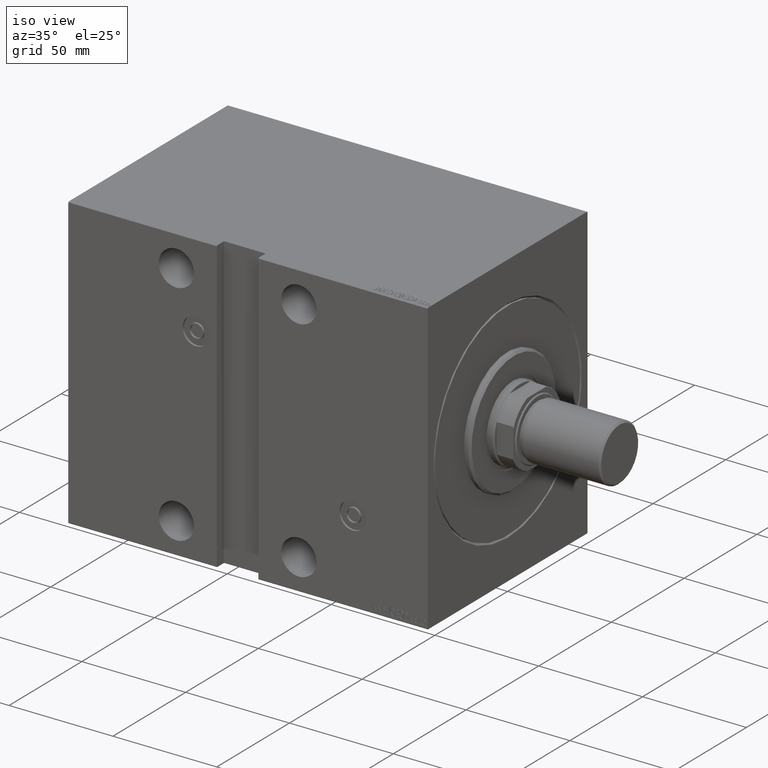
[diagram: clean part render]
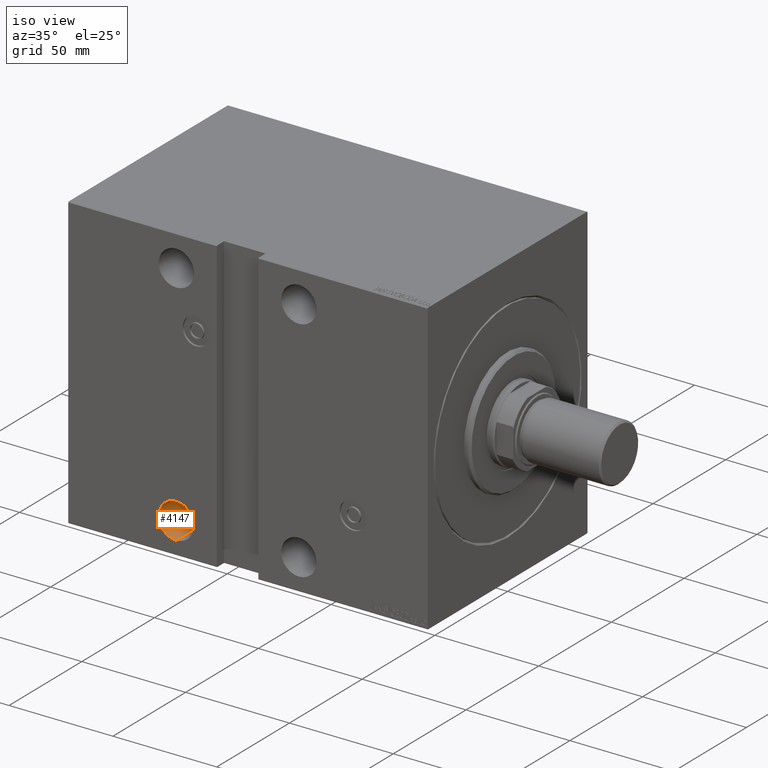
[diagram: same view with one face highlighted and labeled with its STEP entity id]
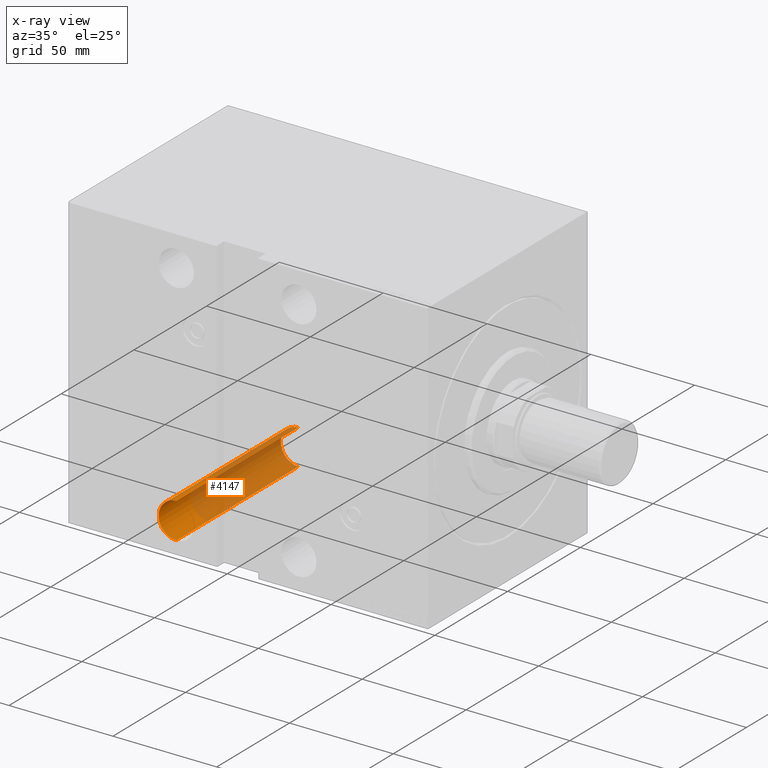
[diagram: x-ray of the same camera — body ghosted, the highlighted face saturated]
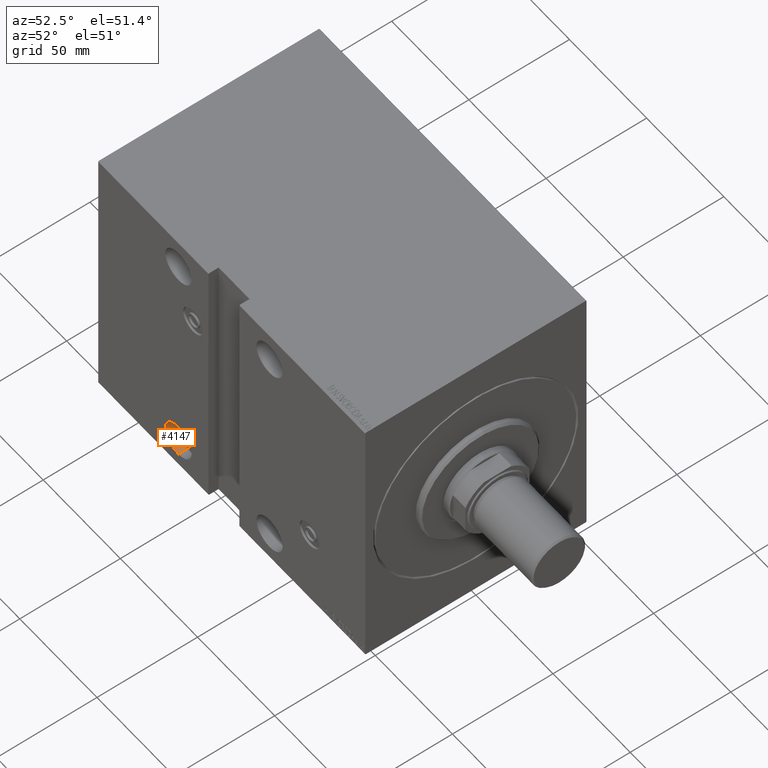
[diagram: same view with one face highlighted and labeled with its STEP entity id]
A machine part, iso view. The second image highlights one B-rep face of the part: STEP entity #4147.
The next image is the same camera in x-ray: the body ghosted, the highlighted face saturated — about 73% of this face is hidden behind the body in this view.
A second angle (auxiliary view) of the same face is appended — the face is thin or edge-on in the first view.
In plain terms, the highlighted cylindrical surface (edge-blend (fillet) strip) has radius 8.5 mm, axis along (0, -1, -0).
Its self-contained STEP definition (entity closure, byte-faithful):
#340 = ORIENTED_EDGE ( 'NONE', *, *, #8555, .F. ) ;
#1031 = DIRECTION ( 'NONE',  ( 0.000000000000000000, 0.000000000000000000, 1.000000000000000000 ) ) ;
#3369 = ORIENTED_EDGE ( 'NONE', *, *, #32510, .T. ) ;
#3649 = ORIENTED_EDGE ( 'NONE', *, *, #43039, .T. ) ;
#4147 = ADVANCED_FACE ( 'NONE', ( #21647 ), #41358, .F. ) ;
#4402 = DIRECTION ( 'NONE',  ( 0.000000000000000000, 1.000000000000000000, 0.000000000000000000 ) ) ;
#5594 = CIRCLE ( 'NONE', #42750, 8.500000000000007105 ) ;
#8555 = EDGE_CURVE ( 'NONE', #13554, #23847, #23528, .T. ) ;
#10709 = DIRECTION ( 'NONE',  ( -0.000000000000000000, 1.000000000000000000, -0.000000000000000000 ) ) ;
#11358 = CARTESIAN_POINT ( 'NONE',  ( 121.0000000000000000, -55.00000000000004263, -54.99999999999999289 ) ) ;
#12306 = DIRECTION ( 'NONE',  ( -0.000000000000000000, 1.000000000000000000, -0.000000000000000000 ) ) ;
#12419 = LINE ( 'NONE', #22262, #29345 ) ;
#13309 = ORIENTED_EDGE ( 'NONE', *, *, #31522, .F. ) ;
#13554 = VERTEX_POINT ( 'NONE', #14501 ) ;
#14501 = CARTESIAN_POINT ( 'NONE',  ( 121.0000000000000000, -28.99999999999999289, -46.49999999999998579 ) ) ;
#15114 = CARTESIAN_POINT ( 'NONE',  ( 121.0000000000000000, 55.00000000000004263, -54.99999999999999289 ) ) ;
#17285 = EDGE_LOOP ( 'NONE', ( #13309, #340, #3649, #3369 ) ) ;
#19157 = VECTOR ( 'NONE', #12306, 1000.000000000000000 ) ;
#19405 = DIRECTION ( 'NONE',  ( 0.000000000000000000, 0.000000000000000000, -1.000000000000000000 ) ) ;
#21647 = FACE_OUTER_BOUND ( 'NONE', #17285, .T. ) ;
#22262 = CARTESIAN_POINT ( 'NONE',  ( 121.0000000000000000, -55.00000000000004263, -46.49999999999998579 ) ) ;
#22816 = LINE ( 'NONE', #29537, #19157 ) ;
#23528 = CIRCLE ( 'NONE', #39240, 8.500000000000007105 ) ;
#23847 = VERTEX_POINT ( 'NONE', #24651 ) ;
#24651 = CARTESIAN_POINT ( 'NONE',  ( 121.0000000000000000, -28.99999999999999289, -63.50000000000000000 ) ) ;
#26747 = CARTESIAN_POINT ( 'NONE',  ( 121.0000000000000000, 55.00000000000004263, -63.50000000000000000 ) ) ;
#29345 = VECTOR ( 'NONE', #29433, 1000.000000000000000 ) ;
#29433 = DIRECTION ( 'NONE',  ( -0.000000000000000000, 1.000000000000000000, -0.000000000000000000 ) ) ;
#29537 = CARTESIAN_POINT ( 'NONE',  ( 121.0000000000000000, -55.00000000000004263, -63.50000000000000000 ) ) ;
#31522 = EDGE_CURVE ( 'NONE', #23847, #33585, #22816, .T. ) ;
#32510 = EDGE_CURVE ( 'NONE', #39014, #33585, #5594, .T. ) ;
#32850 = DIRECTION ( 'NONE',  ( -0.000000000000000000, 1.000000000000000000, -0.000000000000000000 ) ) ;
#33585 = VERTEX_POINT ( 'NONE', #26747 ) ;
#36414 = AXIS2_PLACEMENT_3D ( 'NONE', #11358, #10709, #41575 ) ;
#39014 = VERTEX_POINT ( 'NONE', #44077 ) ;
#39240 = AXIS2_PLACEMENT_3D ( 'NONE', #40204, #32850, #19405 ) ;
#40204 = CARTESIAN_POINT ( 'NONE',  ( 121.0000000000000000, -28.99999999999999289, -54.99999999999999289 ) ) ;
#41358 = CYLINDRICAL_SURFACE ( 'NONE', #36414, 8.500000000000007105 ) ;
#41575 = DIRECTION ( 'NONE',  ( 0.000000000000000000, 0.000000000000000000, 1.000000000000000000 ) ) ;
#42750 = AXIS2_PLACEMENT_3D ( 'NONE', #15114, #4402, #1031 ) ;
#43039 = EDGE_CURVE ( 'NONE', #13554, #39014, #12419, .T. ) ;
#44077 = CARTESIAN_POINT ( 'NONE',  ( 121.0000000000000000, 55.00000000000004263, -46.49999999999998579 ) ) ;